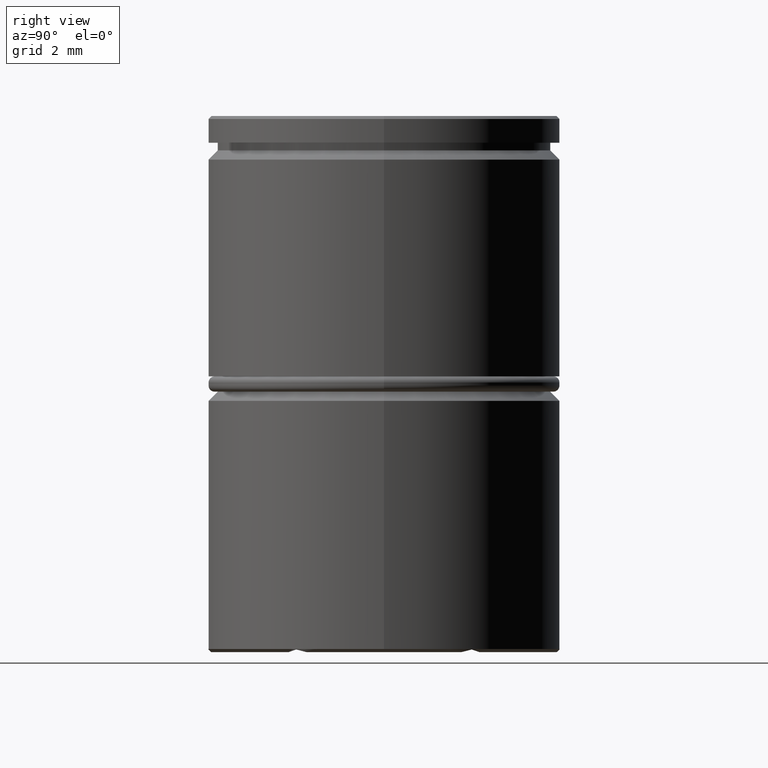
[diagram: clean part render]
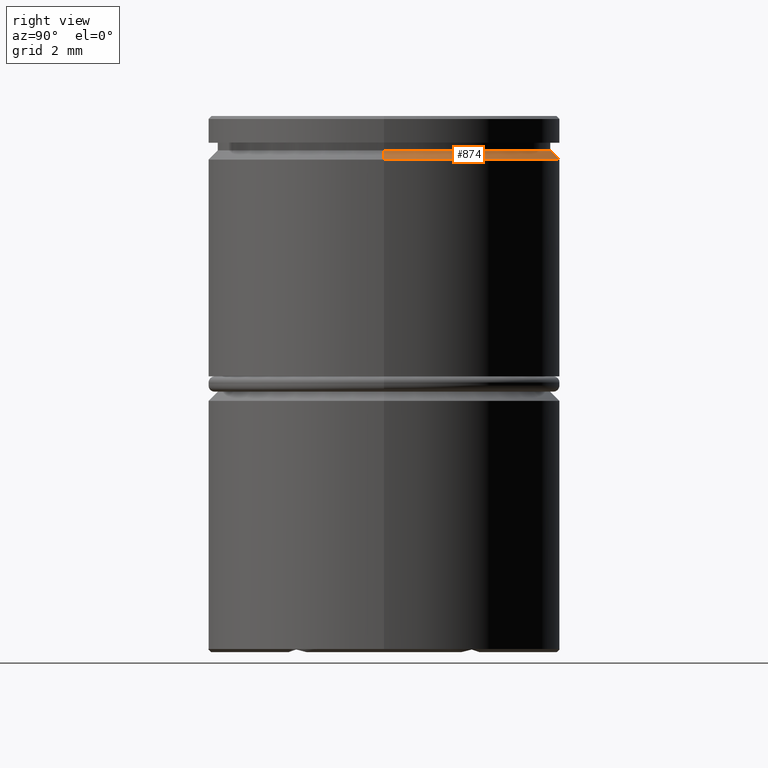
[diagram: same view with one face highlighted and labeled with its STEP entity id]
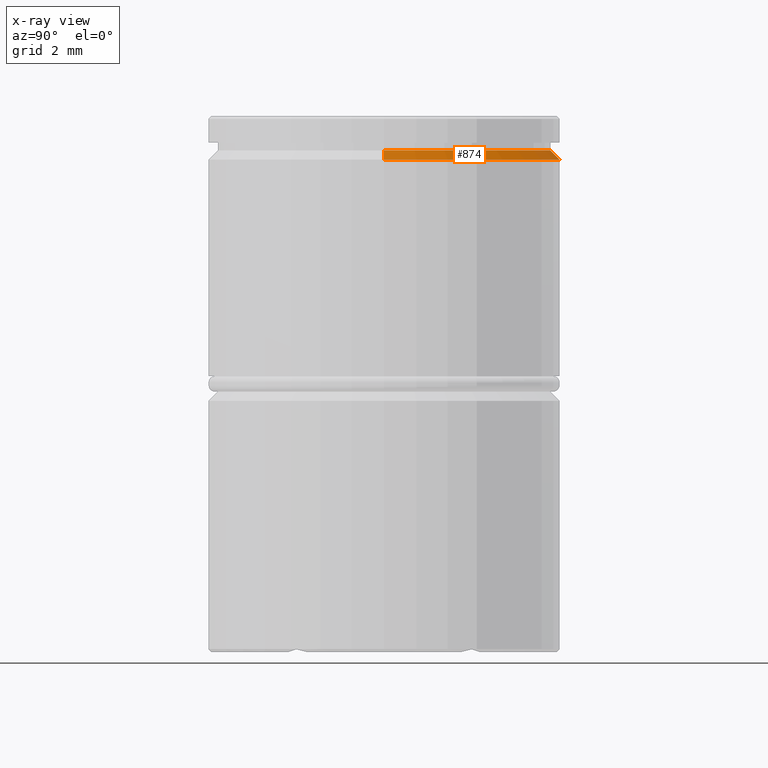
[diagram: x-ray of the same camera — body ghosted, the highlighted face saturated]
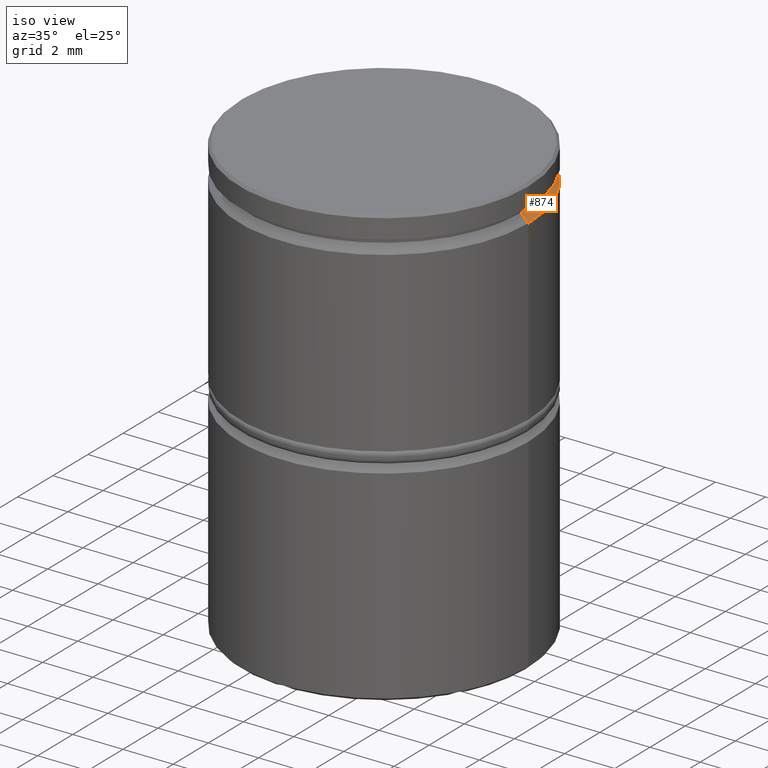
[diagram: same view with one face highlighted and labeled with its STEP entity id]
A machine part, right view. The second image highlights one B-rep face of the part: STEP entity #874.
The next image is the same camera in x-ray: the body ghosted, the highlighted face saturated — about 0% of this face is hidden behind the body in this view.
A second angle (iso view) of the same face is appended — the face is thin or edge-on in the first view.
In plain terms, the highlighted conical surface has half-angle 45 deg.
Its self-contained STEP definition (entity closure, byte-faithful):
#23 = CARTESIAN_POINT ( 'NONE',  ( 5.450000000000000178, 0.000000000000000000, -1.125000000000000222 ) ) ;
#149 = CONICAL_SURFACE ( 'NONE', #198, 5.450000000000004619, 0.7853981633974498333 ) ;
#175 = CIRCLE ( 'NONE', #735, 5.450000000000000178 ) ;
#181 = DIRECTION ( 'NONE',  ( 0.000000000000000000, 0.000000000000000000, -1.000000000000000000 ) ) ;
#198 = AXIS2_PLACEMENT_3D ( 'NONE', #720, #181, #1043 ) ;
#233 = ORIENTED_EDGE ( 'NONE', *, *, #619, .F. ) ;
#314 = ORIENTED_EDGE ( 'NONE', *, *, #444, .F. ) ;
#408 = CARTESIAN_POINT ( 'NONE',  ( -5.450000000000004619, 0.000000000000000000, -1.125000000000000222 ) ) ;
#423 = CARTESIAN_POINT ( 'NONE',  ( 5.450000000000004619, 6.674325055353080168E-16, -1.125000000000000222 ) ) ;
#444 = EDGE_CURVE ( 'NONE', #717, #1196, #870, .T. ) ;
#484 = AXIS2_PLACEMENT_3D ( 'NONE', #1181, #1217, #884 ) ;
#530 = EDGE_LOOP ( 'NONE', ( #233, #893, #314, #1127 ) ) ;
#607 = DIRECTION ( 'NONE',  ( -0.000000000000000000, -0.000000000000000000, 1.000000000000000000 ) ) ;
#619 = EDGE_CURVE ( 'NONE', #764, #1023, #175, .T. ) ;
#622 = DIRECTION ( 'NONE',  ( 1.000000000000000000, 0.000000000000000000, 0.000000000000000000 ) ) ;
#717 = VERTEX_POINT ( 'NONE', #784 ) ;
#720 = CARTESIAN_POINT ( 'NONE',  ( 0.000000000000000000, 0.000000000000000000, -1.125000000000000222 ) ) ;
#735 = AXIS2_PLACEMENT_3D ( 'NONE', #938, #607, #622 ) ;
#764 = VERTEX_POINT ( 'NONE', #23 ) ;
#773 = CARTESIAN_POINT ( 'NONE',  ( 5.750000000000000000, 0.000000000000000000, -1.424999999999994937 ) ) ;
#784 = CARTESIAN_POINT ( 'NONE',  ( -5.750000000000000000, 7.041719095097280880E-16, -1.424999999999994937 ) ) ;
#862 = DIRECTION ( 'NONE',  ( -0.7071067811865486830, 0.000000000000000000, -0.7071067811865464625 ) ) ;
#870 = CIRCLE ( 'NONE', #484, 5.750000000000000000 ) ;
#874 = ADVANCED_FACE ( 'NONE', ( #1144 ), #149, .T. ) ;
#884 = DIRECTION ( 'NONE',  ( 1.000000000000000000, 0.000000000000000000, 0.000000000000000000 ) ) ;
#893 = ORIENTED_EDGE ( 'NONE', *, *, #1000, .T. ) ;
#928 = EDGE_CURVE ( 'NONE', #1023, #717, #1084, .T. ) ;
#938 = CARTESIAN_POINT ( 'NONE',  ( 0.000000000000000000, 0.000000000000000000, -1.125000000000000222 ) ) ;
#958 = CARTESIAN_POINT ( 'NONE',  ( -5.450000000000000178, 6.674325055353075238E-16, -1.125000000000000222 ) ) ;
#962 = LINE ( 'NONE', #423, #1320 ) ;
#1000 = EDGE_CURVE ( 'NONE', #764, #1196, #962, .T. ) ;
#1023 = VERTEX_POINT ( 'NONE', #958 ) ;
#1043 = DIRECTION ( 'NONE',  ( -1.000000000000000000, 0.000000000000000000, 0.000000000000000000 ) ) ;
#1084 = LINE ( 'NONE', #408, #1099 ) ;
#1099 = VECTOR ( 'NONE', #862, 999.9999999999998863 ) ;
#1127 = ORIENTED_EDGE ( 'NONE', *, *, #928, .F. ) ;
#1144 = FACE_OUTER_BOUND ( 'NONE', #530, .T. ) ;
#1179 = DIRECTION ( 'NONE',  ( 0.7071067811865486830, 8.659560562354947649E-17, -0.7071067811865464625 ) ) ;
#1181 = CARTESIAN_POINT ( 'NONE',  ( 0.000000000000000000, 0.000000000000000000, -1.424999999999994937 ) ) ;
#1196 = VERTEX_POINT ( 'NONE', #773 ) ;
#1217 = DIRECTION ( 'NONE',  ( 0.000000000000000000, 0.000000000000000000, -1.000000000000000000 ) ) ;
#1320 = VECTOR ( 'NONE', #1179, 999.9999999999998863 ) ;